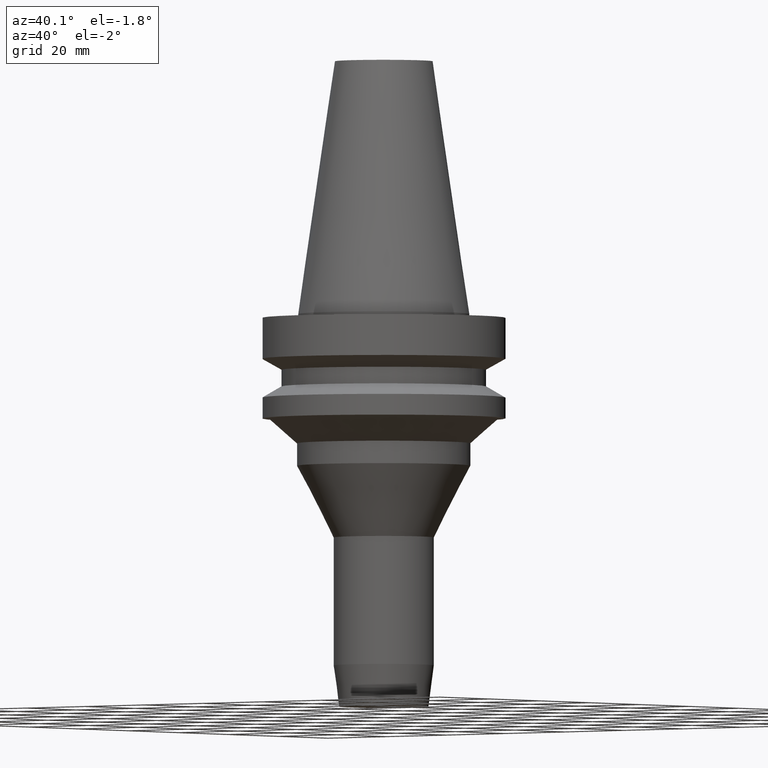
[diagram: clean part render]
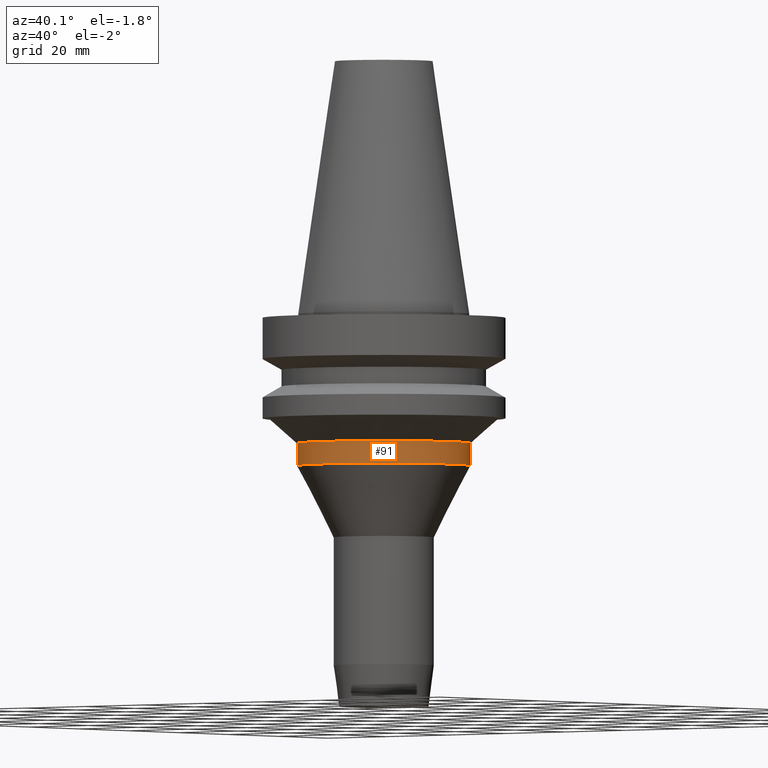
[diagram: same view with one face highlighted and labeled with its STEP entity id]
A machine part, auxiliary view. The second image highlights one B-rep face of the part: STEP entity #91.
In plain terms, the highlighted cylindrical surface (bore or boss wall) has radius 22.5 mm, axis along (0, -0, -1).
Its self-contained STEP definition (entity closure, byte-faithful):
#64=EDGE_CURVE('Unnamed[1]',#166,#166,#167,.T.);
#91=ADVANCED_FACE('Unnamed[1]',(#208,#209),#210,.T.);
#130=EDGE_CURVE('Unnamed[1]',#268,#268,#269,.T.);
#166=VERTEX_POINT('',#302);
#167=CIRCLE('',#303,22.5000000000004);
#208=FACE_BOUND('',#355,.T.);
#209=FACE_BOUND('',#356,.T.);
#210=CYLINDRICAL_SURFACE('',#357,22.5000000000001);
#268=VERTEX_POINT('',#429);
#269=CIRCLE('',#430,22.4999999999998);
#302=CARTESIAN_POINT('',(2.40459052004988E-015,22.5000000000005,-39.2699433293591));
#303=AXIS2_PLACEMENT_3D('',#457,#458,#459);
#355=EDGE_LOOP('',(#503));
#356=EDGE_LOOP('',(#504));
#357=AXIS2_PLACEMENT_3D('',#505,#506,#507);
#429=CARTESIAN_POINT('',(2.04902721681725E-015,22.4999999999998,-33.4631539190542));
#430=AXIS2_PLACEMENT_3D('',#570,#571,#572);
#457=CARTESIAN_POINT('',(2.40459052004988E-015,1.81197022687258E-014,-39.269943329359));
#458=DIRECTION('',(6.12323399573677E-017,-5.58802637008037E-016,-1.0));
#459=DIRECTION('',(2.93896403075806E-032,1.0,-5.58802637008037E-016));
#503=ORIENTED_EDGE('',*,*,#64,.F.);
#504=ORIENTED_EDGE('',*,*,#130,.T.);
#505=CARTESIAN_POINT('',(2.22680886843356E-015,1.97421268862401E-014,-36.3665486242066));
#506=DIRECTION('',(6.12323399573677E-017,-5.58802637008037E-016,-1.0));
#507=DIRECTION('',(2.93896403075806E-032,1.0,-5.58802637008037E-016));
#570=CARTESIAN_POINT('',(2.04902721681725E-015,2.13645515037544E-014,-33.4631539190542));
#571=DIRECTION('',(6.12323399573677E-017,-5.58802637008037E-016,-1.0));
#572=DIRECTION('',(2.93896403075806E-032,1.0,-5.58802637008037E-016));